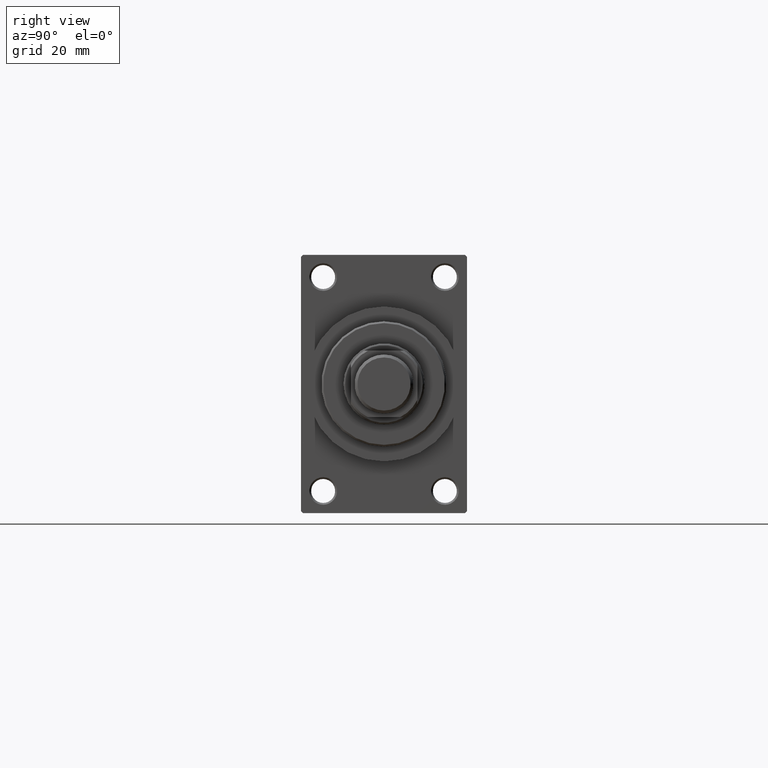
[diagram: clean part render]
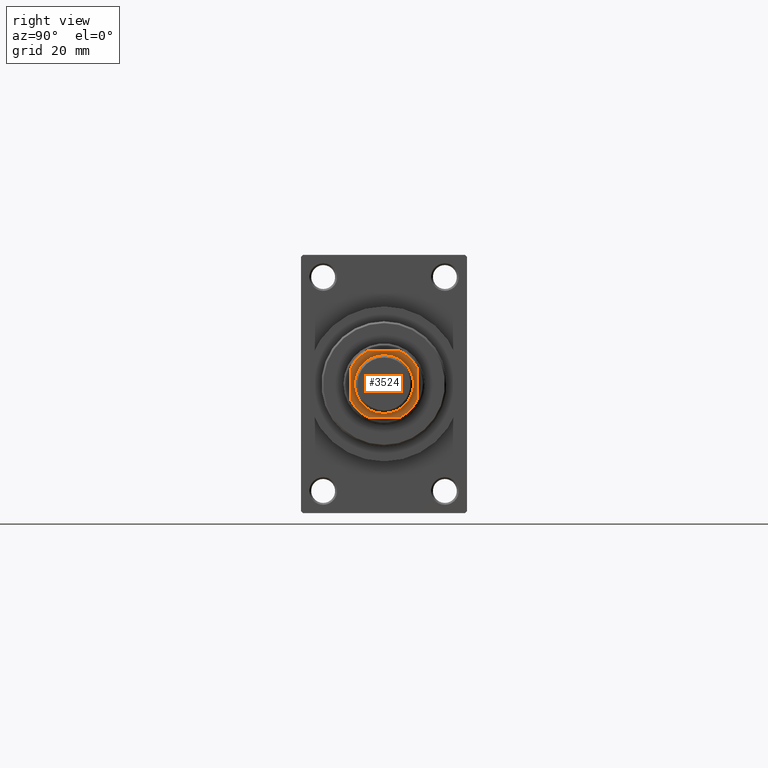
[diagram: same view with one face highlighted and labeled with its STEP entity id]
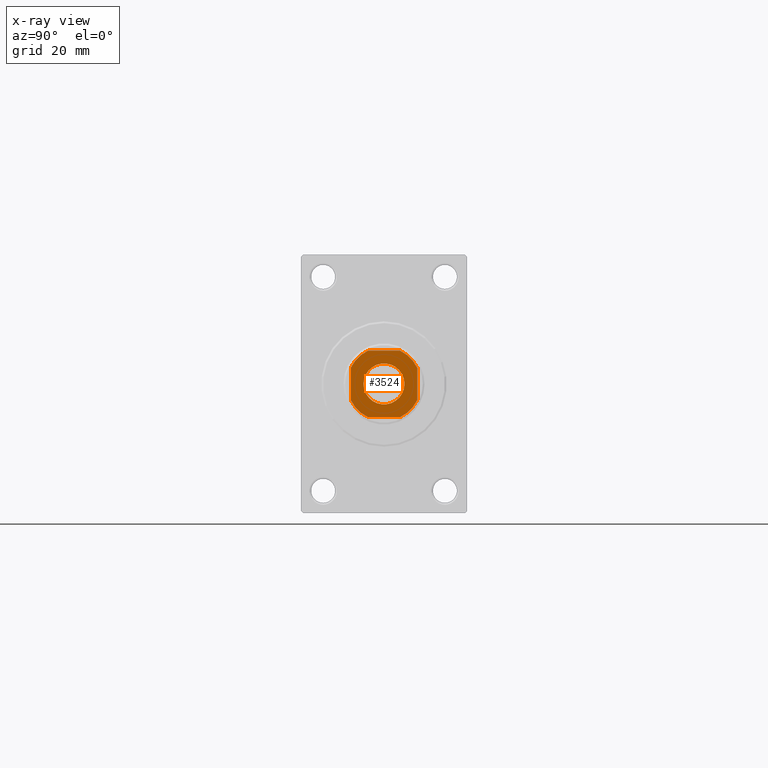
[diagram: x-ray of the same camera — body ghosted, the highlighted face saturated]
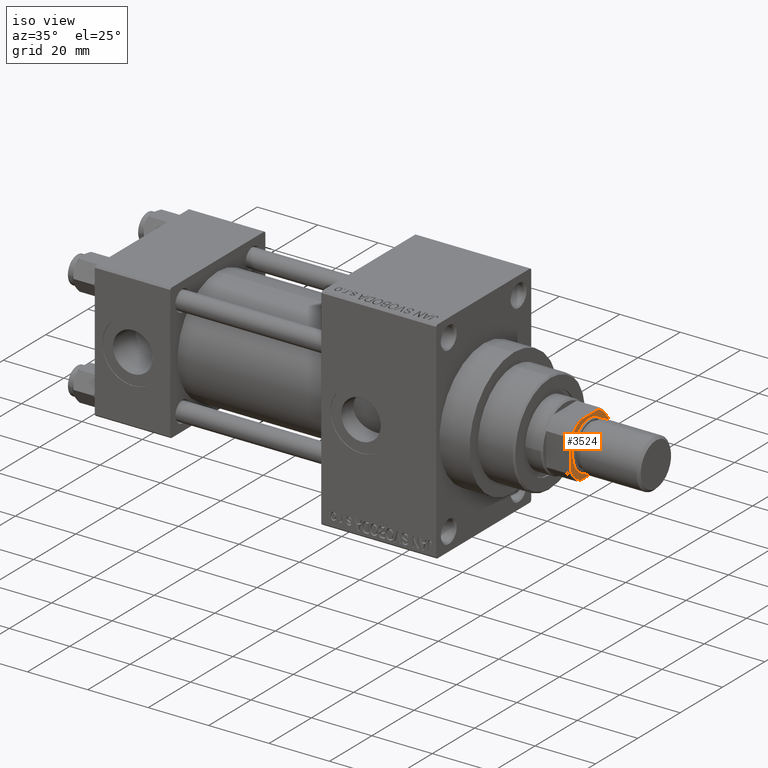
[diagram: same view with one face highlighted and labeled with its STEP entity id]
A machine part, right view. The second image highlights one B-rep face of the part: STEP entity #3524.
The next image is the same camera in x-ray: the body ghosted, the highlighted face saturated — about 0% of this face is hidden behind the body in this view.
A second angle (iso view) of the same face is appended — the face is thin or edge-on in the first view.
In plain terms, the highlighted planar face has unit normal (1, 0, 0).
Its self-contained STEP definition (entity closure, byte-faithful):
#1448 = DIRECTION ( 'NONE',  ( 1.000000000000000000, 0.000000000000000000, 0.000000000000000000 ) ) ;
#1686 = DIRECTION ( 'NONE',  ( -0.000000000000000000, 0.000000000000000000, 1.000000000000000000 ) ) ;
#2151 = CARTESIAN_POINT ( 'NONE',  ( 0.000000000000000000, 0.000000000000000000, 123.0000000000000000 ) ) ;
#2583 = DIRECTION ( 'NONE',  ( 0.000000000000000000, -0.000000000000000000, -1.000000000000000000 ) ) ;
#3041 = EDGE_LOOP ( 'NONE', ( #21032, #28798 ) ) ;
#3524 = ADVANCED_FACE ( 'NONE', ( #42150, #28167 ), #20960, .T. ) ;
#3959 = CARTESIAN_POINT ( 'NONE',  ( -4.358898943540667759, -9.000000000000001776, 123.0000000000000000 ) ) ;
#3988 = DIRECTION ( 'NONE',  ( 1.000000000000000000, 0.000000000000000000, 0.000000000000000000 ) ) ;
#4821 = CARTESIAN_POINT ( 'NONE',  ( -9.000000000000003553, 8.999999999999998224, 123.0000000000000000 ) ) ;
#5638 = CIRCLE ( 'NONE', #9492, 9.999999999999996447 ) ;
#5665 = CARTESIAN_POINT ( 'NONE',  ( -5.550000000000013145, 6.796789735267826558E-16, 123.0000000000000000 ) ) ;
#6486 = EDGE_CURVE ( 'NONE', #26501, #14574, #5638, .T. ) ;
#6562 = CIRCLE ( 'NONE', #30355, 5.550000000000013145 ) ;
#6904 = AXIS2_PLACEMENT_3D ( 'NONE', #41181, #19525, #22647 ) ;
#6966 = VECTOR ( 'NONE', #8664, 1000.000000000000000 ) ;
#7686 = CARTESIAN_POINT ( 'NONE',  ( -9.000000000000003553, 4.358898943540662430, 123.0000000000000000 ) ) ;
#8301 = CARTESIAN_POINT ( 'NONE',  ( 0.000000000000000000, 0.000000000000000000, 123.0000000000000000 ) ) ;
#8611 = ORIENTED_EDGE ( 'NONE', *, *, #43948, .T. ) ;
#8664 = DIRECTION ( 'NONE',  ( -1.000000000000000000, -0.000000000000000000, -0.000000000000000000 ) ) ;
#8903 = DIRECTION ( 'NONE',  ( 1.000000000000000000, 0.000000000000000000, 0.000000000000000000 ) ) ;
#8979 = DIRECTION ( 'NONE',  ( 1.000000000000000000, 0.000000000000000000, 0.000000000000000000 ) ) ;
#9492 = AXIS2_PLACEMENT_3D ( 'NONE', #34179, #1686, #1448 ) ;
#10636 = EDGE_CURVE ( 'NONE', #43951, #45892, #6562, .T. ) ;
#11694 = DIRECTION ( 'NONE',  ( 0.000000000000000000, -0.000000000000000000, -1.000000000000000000 ) ) ;
#11857 = VERTEX_POINT ( 'NONE', #3959 ) ;
#12217 = LINE ( 'NONE', #37474, #39073 ) ;
#13135 = EDGE_CURVE ( 'NONE', #21971, #47313, #34968, .T. ) ;
#13235 = CARTESIAN_POINT ( 'NONE',  ( 4.358898943540597593, 8.999999999999998224, 123.0000000000000000 ) ) ;
#13739 = ORIENTED_EDGE ( 'NONE', *, *, #14393, .T. ) ;
#14246 = AXIS2_PLACEMENT_3D ( 'NONE', #20057, #38328, #8979 ) ;
#14393 = EDGE_CURVE ( 'NONE', #11857, #21971, #30108, .T. ) ;
#14574 = VERTEX_POINT ( 'NONE', #7686 ) ;
#16181 = CIRCLE ( 'NONE', #33119, 9.999999999999966249 ) ;
#17262 = DIRECTION ( 'NONE',  ( 1.000000000000000000, 0.000000000000000000, 0.000000000000000000 ) ) ;
#17803 = DIRECTION ( 'NONE',  ( 9.637352644315595243E-17, -1.000000000000000000, 0.000000000000000000 ) ) ;
#18044 = CARTESIAN_POINT ( 'NONE',  ( -4.358898943540671311, 8.999999999999998224, 123.0000000000000000 ) ) ;
#19525 = DIRECTION ( 'NONE',  ( -0.000000000000000000, 0.000000000000000000, 1.000000000000000000 ) ) ;
#19570 = VECTOR ( 'NONE', #30805, 1000.000000000000000 ) ;
#20057 = CARTESIAN_POINT ( 'NONE',  ( 0.000000000000000000, 0.000000000000000000, 123.0000000000000000 ) ) ;
#20960 = PLANE ( 'NONE',  #41680 ) ;
#21032 = ORIENTED_EDGE ( 'NONE', *, *, #10636, .T. ) ;
#21971 = VERTEX_POINT ( 'NONE', #22922 ) ;
#22647 = DIRECTION ( 'NONE',  ( 1.000000000000000000, 0.000000000000000000, 0.000000000000000000 ) ) ;
#22922 = CARTESIAN_POINT ( 'NONE',  ( 4.358898943540667759, -9.000000000000001776, 123.0000000000000000 ) ) ;
#23105 = LINE ( 'NONE', #4821, #6966 ) ;
#23388 = VERTEX_POINT ( 'NONE', #13235 ) ;
#23401 = EDGE_CURVE ( 'NONE', #14574, #37488, #42823, .T. ) ;
#24477 = EDGE_CURVE ( 'NONE', #47313, #29668, #12217, .T. ) ;
#24520 = CARTESIAN_POINT ( 'NONE',  ( -9.000000000000003553, -4.358898943540665094, 123.0000000000000000 ) ) ;
#25923 = ORIENTED_EDGE ( 'NONE', *, *, #34055, .T. ) ;
#26501 = VERTEX_POINT ( 'NONE', #18044 ) ;
#27890 = CARTESIAN_POINT ( 'NONE',  ( -9.000000000000003553, 8.999999999999998224, 123.0000000000000000 ) ) ;
#27929 = DIRECTION ( 'NONE',  ( 1.000000000000000000, 0.000000000000000000, 0.000000000000000000 ) ) ;
#28082 = CARTESIAN_POINT ( 'NONE',  ( 0.000000000000000000, 0.000000000000000000, 123.0000000000000000 ) ) ;
#28167 = FACE_OUTER_BOUND ( 'NONE', #35376, .T. ) ;
#28798 = ORIENTED_EDGE ( 'NONE', *, *, #33410, .T. ) ;
#29668 = VERTEX_POINT ( 'NONE', #39124 ) ;
#30001 = CIRCLE ( 'NONE', #33863, 5.550000000000013145 ) ;
#30108 = LINE ( 'NONE', #34204, #19570 ) ;
#30355 = AXIS2_PLACEMENT_3D ( 'NONE', #28082, #2583, #17262 ) ;
#30359 = CARTESIAN_POINT ( 'NONE',  ( 8.999999999999998224, -4.358898943540672200, 123.0000000000000000 ) ) ;
#30433 = ORIENTED_EDGE ( 'NONE', *, *, #13135, .T. ) ;
#30805 = DIRECTION ( 'NONE',  ( 1.000000000000000000, 0.000000000000000000, 0.000000000000000000 ) ) ;
#32020 = DIRECTION ( 'NONE',  ( -0.000000000000000000, 0.000000000000000000, 1.000000000000000000 ) ) ;
#33119 = AXIS2_PLACEMENT_3D ( 'NONE', #2151, #38709, #8903 ) ;
#33410 = EDGE_CURVE ( 'NONE', #45892, #43951, #30001, .T. ) ;
#33863 = AXIS2_PLACEMENT_3D ( 'NONE', #8301, #11694, #3988 ) ;
#34055 = EDGE_CURVE ( 'NONE', #23388, #26501, #23105, .T. ) ;
#34069 = EDGE_CURVE ( 'NONE', #29668, #23388, #16181, .T. ) ;
#34179 = CARTESIAN_POINT ( 'NONE',  ( 0.000000000000000000, 0.000000000000000000, 123.0000000000000000 ) ) ;
#34204 = CARTESIAN_POINT ( 'NONE',  ( -9.000000000000001776, -9.000000000000001776, 123.0000000000000000 ) ) ;
#34417 = VECTOR ( 'NONE', #17803, 1000.000000000000000 ) ;
#34968 = CIRCLE ( 'NONE', #14246, 9.999999999999998224 ) ;
#35376 = EDGE_LOOP ( 'NONE', ( #42541, #37658, #25923, #40823, #40762, #8611, #13739, #30433 ) ) ;
#35629 = CARTESIAN_POINT ( 'NONE',  ( 0.000000000000000000, 0.000000000000000000, 123.0000000000000000 ) ) ;
#37474 = CARTESIAN_POINT ( 'NONE',  ( 8.999999999999996447, 8.999999999999998224, 123.0000000000000000 ) ) ;
#37488 = VERTEX_POINT ( 'NONE', #24520 ) ;
#37658 = ORIENTED_EDGE ( 'NONE', *, *, #34069, .T. ) ;
#38328 = DIRECTION ( 'NONE',  ( -0.000000000000000000, 0.000000000000000000, 1.000000000000000000 ) ) ;
#38382 = CIRCLE ( 'NONE', #6904, 9.999999999999998224 ) ;
#38417 = DIRECTION ( 'NONE',  ( -1.927470528863119049E-16, 1.000000000000000000, -0.000000000000000000 ) ) ;
#38709 = DIRECTION ( 'NONE',  ( -0.000000000000000000, 0.000000000000000000, 1.000000000000000000 ) ) ;
#39073 = VECTOR ( 'NONE', #38417, 1000.000000000000000 ) ;
#39124 = CARTESIAN_POINT ( 'NONE',  ( 8.999999999999998224, 4.358898943540600257, 123.0000000000000000 ) ) ;
#40762 = ORIENTED_EDGE ( 'NONE', *, *, #23401, .T. ) ;
#40823 = ORIENTED_EDGE ( 'NONE', *, *, #6486, .T. ) ;
#40944 = CARTESIAN_POINT ( 'NONE',  ( 5.550000000000013145, 0.000000000000000000, 123.0000000000000000 ) ) ;
#41181 = CARTESIAN_POINT ( 'NONE',  ( 0.000000000000000000, 0.000000000000000000, 123.0000000000000000 ) ) ;
#41680 = AXIS2_PLACEMENT_3D ( 'NONE', #35629, #32020, #27929 ) ;
#42150 = FACE_BOUND ( 'NONE', #3041, .T. ) ;
#42541 = ORIENTED_EDGE ( 'NONE', *, *, #24477, .T. ) ;
#42823 = LINE ( 'NONE', #27890, #34417 ) ;
#43948 = EDGE_CURVE ( 'NONE', #37488, #11857, #38382, .T. ) ;
#43951 = VERTEX_POINT ( 'NONE', #40944 ) ;
#45892 = VERTEX_POINT ( 'NONE', #5665 ) ;
#47313 = VERTEX_POINT ( 'NONE', #30359 ) ;